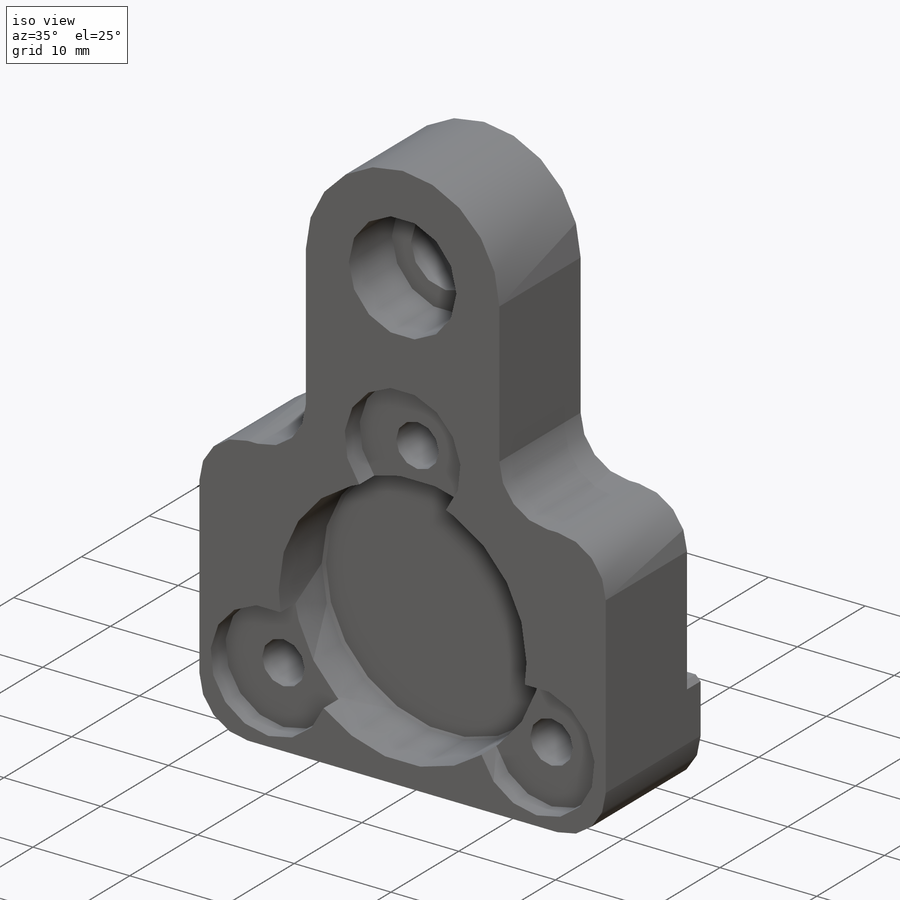
[diagram: iso view]
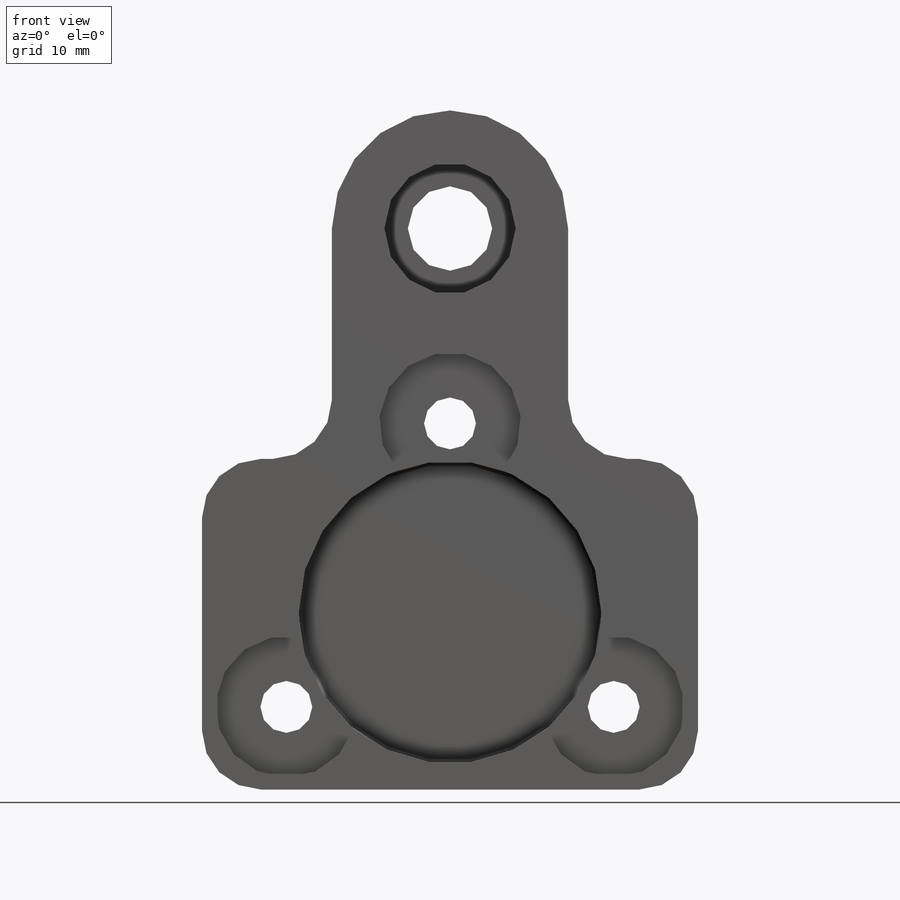
[diagram: front view]
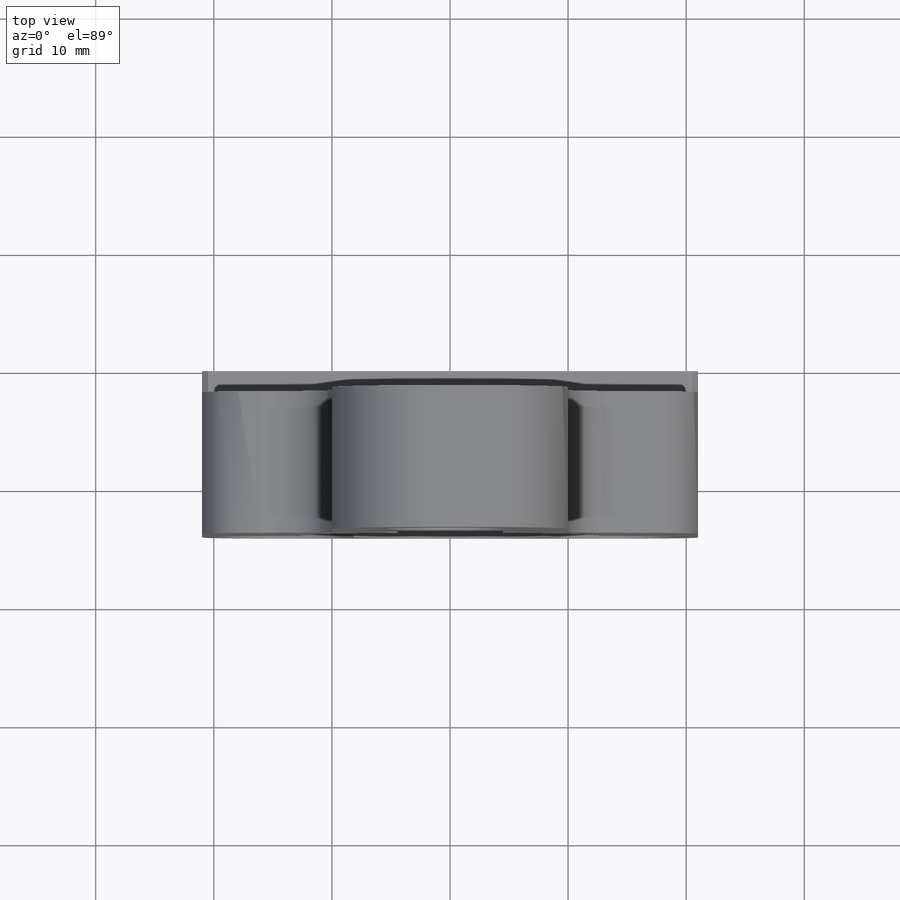
[diagram: top view]
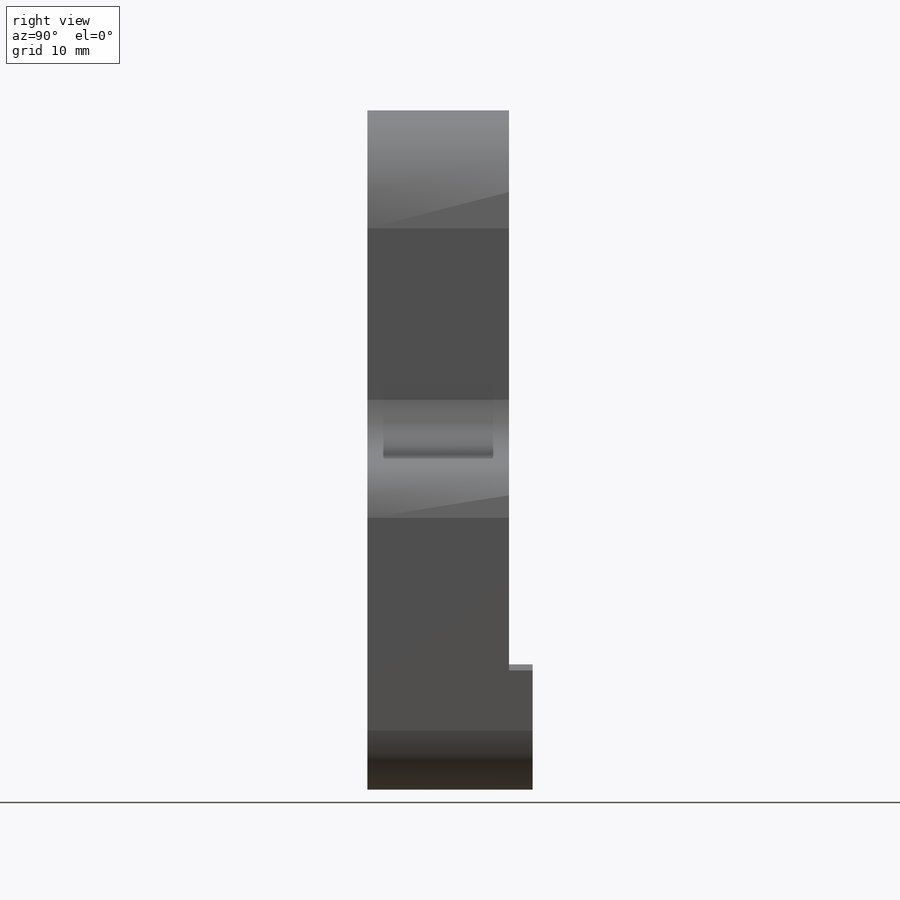
[diagram: right view]
SOLIDWORKS PART (.sldprt)
format: sldprt  version: not decoded by parser v0  size: 300,032 bytes
history: native  units: mm
features: sketch x8, cut_extrude x3, hole x2, chamfer x2, material x1, extrude x1, pattern_circular x1 + 1 further entry (+13 scaffold rows collapsed)
feature tree (32):
  scaffold x13  (default folders/planes/origin — collapsed)
  material  "6061-T6 Al"
  "Origin"  ID=-1
  sketch  "Sketch1"  dims[c1.D6=5.0mm c1.D1=42.0mm c1.D2=20.0mm c1.D3=57.5mm c1.D4=28.0mm c2.D3=47.5mm c2.D2=20.0mm c2.D5=10.0mm c2.D7=15.0mm]
  extrude  "Boss-Extrude1"  Depth=14mm
  sketch  "Sketch2"  dims[D1=25.6mm]
  cut_extrude  "Cut-Extrude1"  Depth=6.608mm
  hole  "CBORE for 1/4 Socket Head Cap Screw1"  Diameter=7.14248mm Depth=14mm
  sketch  "Sketch4"
  sketch  "Sketch3"  dims[hole-wizard template sketch: 42 standard entries collapsed; hole parameters kept: c12.Thru Hole Depth=14.0mm c12.C'Bore Dia.=11.1125mm c12.C'Bore Depth=6.35mm]
  sketch  "Sketch5"  dims[D2=12.0mm D1=16.0mm]
  cut_extrude  "Cut-Extrude2"  Depth=2.2mm
  pattern_circular  "CirPattern2"  Count=3 Angle=360deg
  hole  "Tapped Hole for #8-32 Helicoil1"  Diameter=4.3942mm Depth=13.322mm
  sketch  "Sketch7"
  sketch  "Sketch6"  dims[hole-wizard template sketch: 46 standard entries collapsed; hole parameters kept: c15.Tap Drill Dia.=4.3942mm c15.Tap Drill Depth=13.322mm c15.D3=~14.816244mm c15.Drill Angle=118.0deg]
  sketch  "Sketch8"  dims[D1=10.6mm]
  cut_extrude  "Cut-Extrude3"  Depth=2mm
  chamfer  "Chamfer1"  Distance=0.508mm Angle=45deg
  chamfer  "Chamfer2"  Distance=0.254mm Angle=45deg
decode coverage: 15 of 17 modeling features carry decoded parameters; 1 rows unclassified (native names shown)
note: ~ marks probable driven/reference dimensions
note: suppression state not decoded; provenance and decode notes live in map.json
